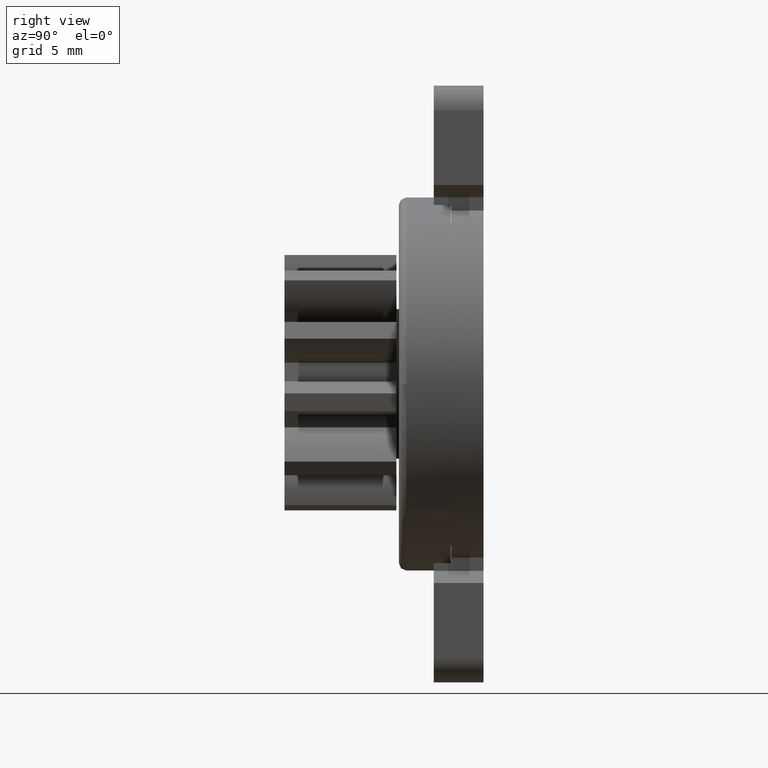
[diagram: clean part render]
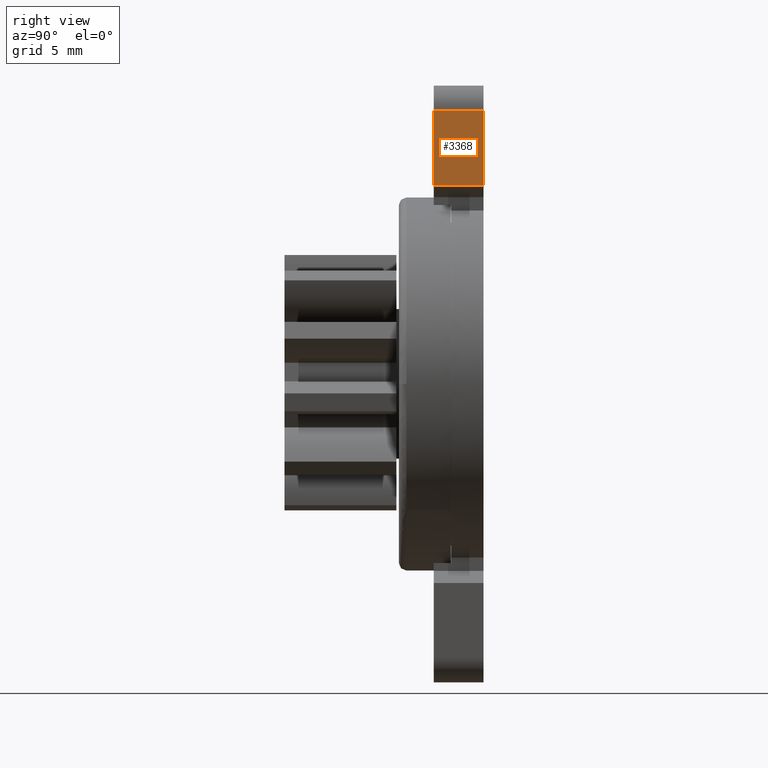
[diagram: same view with one face highlighted and labeled with its STEP entity id]
A machine part, right view. The second image highlights one B-rep face of the part: STEP entity #3368.
In plain terms, the highlighted face is a freeform B-spline surface patch.
Its self-contained STEP definition (entity closure, byte-faithful):
#3302=CARTESIAN_POINT('',(3.500000000000000,0.0,11.0));
#3303=VERTEX_POINT('',#3302);
#3318=CARTESIAN_POINT('',(3.500000000000000,-2.0,11.0));
#3319=VERTEX_POINT('',#3318);
#3333=CARTESIAN_POINT('',(3.500000000000000,-2.0,11.0));
#3334=CARTESIAN_POINT('',(3.500000000000000,0.0,11.0));
#3335=QUASI_UNIFORM_CURVE('',1,(#3333,#3334),.UNSPECIFIED.,.F.,.U.);
#3336=EDGE_CURVE('',#3319,#3303,#3335,.T.);
#3341=CARTESIAN_POINT('',(3.500000000000000,-2.099899996123612,11.149849994185420));
#3342=CARTESIAN_POINT('',(3.500000000000000,-2.099899996123612,7.850149925348312));
#3343=CARTESIAN_POINT('',(3.500000000000000,0.099900049767792,11.149849994185420));
#3344=CARTESIAN_POINT('',(3.500000000000000,0.099900049767792,7.850149925348312));
#3345=B_SPLINE_SURFACE_WITH_KNOTS('',1,1,((#3341,#3343),(#3342,#3344)),.UNSPECIFIED.,.F.,.F.,.U.,(2,2),(2,2),(0.0,3.299700068837106),(0.0,2.199800045891404),.UNSPECIFIED.);
#3346=CARTESIAN_POINT('',(3.500000000000000,0.0,8.0));
#3347=VERTEX_POINT('',#3346);
#3348=CARTESIAN_POINT('',(3.500000000000000,0.0,11.0));
#3349=CARTESIAN_POINT('',(3.500000000000000,0.0,8.0));
#3350=QUASI_UNIFORM_CURVE('',1,(#3348,#3349),.UNSPECIFIED.,.F.,.U.);
#3351=EDGE_CURVE('',#3303,#3347,#3350,.T.);
#3352=ORIENTED_EDGE('',*,*,#3351,.F.);
#3353=ORIENTED_EDGE('',*,*,#3336,.F.);
#3354=CARTESIAN_POINT('',(3.500000000000000,-2.0,8.0));
#3355=VERTEX_POINT('',#3354);
#3356=CARTESIAN_POINT('',(3.500000000000000,-2.0,11.0));
#3357=CARTESIAN_POINT('',(3.500000000000000,-2.0,8.0));
#3358=QUASI_UNIFORM_CURVE('',1,(#3356,#3357),.UNSPECIFIED.,.F.,.U.);
#3359=EDGE_CURVE('',#3319,#3355,#3358,.T.);
#3360=ORIENTED_EDGE('',*,*,#3359,.T.);
#3361=CARTESIAN_POINT('',(3.500000000000000,-2.0,8.0));
#3362=CARTESIAN_POINT('',(3.500000000000000,0.0,8.0));
#3363=QUASI_UNIFORM_CURVE('',1,(#3361,#3362),.UNSPECIFIED.,.F.,.U.);
#3364=EDGE_CURVE('',#3355,#3347,#3363,.T.);
#3365=ORIENTED_EDGE('',*,*,#3364,.T.);
#3366=EDGE_LOOP('',(#3352,#3353,#3360,#3365));
#3367=FACE_OUTER_BOUND('',#3366,.T.);
#3368=ADVANCED_FACE('',(#3367),#3345,.T.);